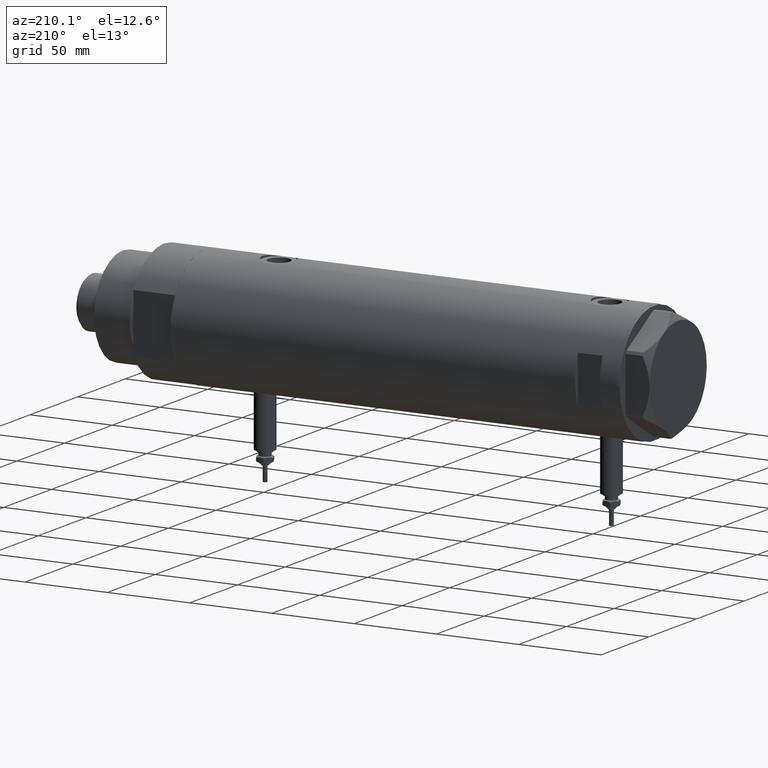
[diagram: clean part render]
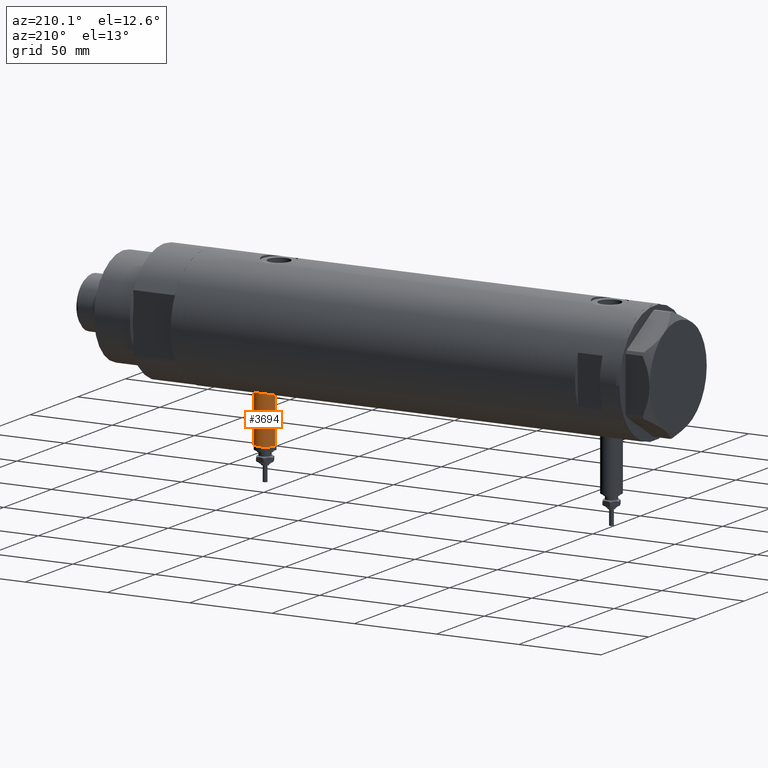
[diagram: same view with one face highlighted and labeled with its STEP entity id]
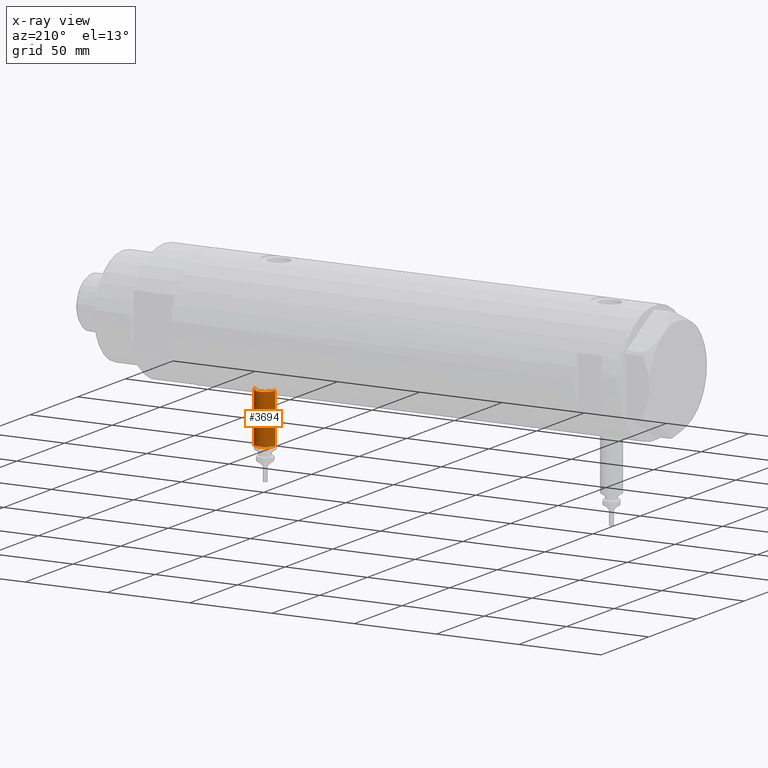
[diagram: x-ray of the same camera — body ghosted, the highlighted face saturated]
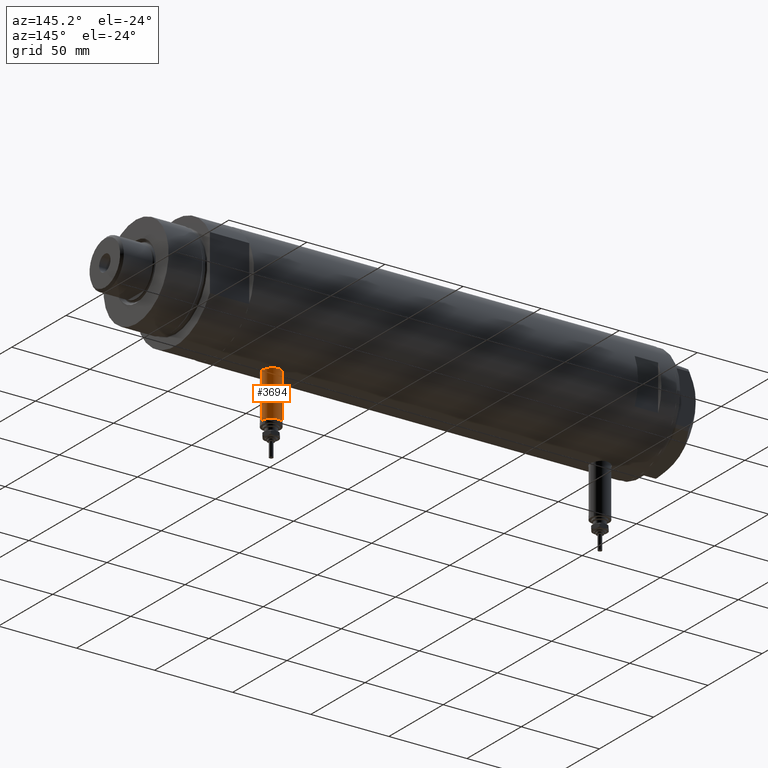
[diagram: same view with one face highlighted and labeled with its STEP entity id]
A machine part, auxiliary view. The second image highlights one B-rep face of the part: STEP entity #3694.
The next image is the same camera in x-ray: the body ghosted, the highlighted face saturated — about 0% of this face is hidden behind the body in this view.
A second angle (auxiliary view) of the same face is appended — the face is thin or edge-on in the first view.
In plain terms, the highlighted cylindrical surface (edge-blend (fillet) strip) has radius 6 mm, axis along (0, 0, 1).
Its self-contained STEP definition (entity closure, byte-faithful):
#18 = VERTEX_POINT ( 'NONE', #5390 ) ;
#286 = DIRECTION ( 'NONE',  ( 1.000000000000000000, -0.000000000000000000, -0.000000000000000000 ) ) ;
#517 = EDGE_CURVE ( 'NONE', #2931, #3825, #3720, .T. ) ;
#614 = CARTESIAN_POINT ( 'NONE',  ( -65.00000000000000000, 7.347880794884122694E-16, -93.09999999999999432 ) ) ;
#630 = FACE_OUTER_BOUND ( 'NONE', #3971, .T. ) ;
#828 = CARTESIAN_POINT ( 'NONE',  ( -65.00000000000000000, 7.347880794884119736E-16, -93.09999999999999432 ) ) ;
#874 = VECTOR ( 'NONE', #286, 1000.000000000000000 ) ;
#921 = DIRECTION ( 'NONE',  ( 0.000000000000000000, 0.000000000000000000, 1.000000000000000000 ) ) ;
#1072 = DIRECTION ( 'NONE',  ( 0.000000000000000000, 0.000000000000000000, 1.000000000000000000 ) ) ;
#1092 = ORIENTED_EDGE ( 'NONE', *, *, #5376, .F. ) ;
#1311 = ORIENTED_EDGE ( 'NONE', *, *, #517, .T. ) ;
#1457 = DIRECTION ( 'NONE',  ( 1.000000000000000000, -0.000000000000000000, -0.000000000000000000 ) ) ;
#1458 = CIRCLE ( 'NONE', #2987, 6.000000000000005329 ) ;
#1507 = ORIENTED_EDGE ( 'NONE', *, *, #5246, .T. ) ;
#1510 = CYLINDRICAL_SURFACE ( 'NONE', #4038, 6.000000000000005329 ) ;
#1646 = VECTOR ( 'NONE', #4649, 1000.000000000000000 ) ;
#1950 = LINE ( 'NONE', #614, #1646 ) ;
#1988 = AXIS2_PLACEMENT_3D ( 'NONE', #5470, #4147, #921 ) ;
#2125 = CARTESIAN_POINT ( 'NONE',  ( -35.29999999999999716, 7.347880794884119736E-16, -93.09999999999999432 ) ) ;
#2931 = VERTEX_POINT ( 'NONE', #2125 ) ;
#2959 = LINE ( 'NONE', #4791, #874 ) ;
#2987 = AXIS2_PLACEMENT_3D ( 'NONE', #3835, #5662, #1072 ) ;
#3694 = ADVANCED_FACE ( 'NONE', ( #630 ), #1510, .T. ) ;
#3720 = CIRCLE ( 'NONE', #1988, 6.000000000000005329 ) ;
#3825 = VERTEX_POINT ( 'NONE', #5705 ) ;
#3835 = CARTESIAN_POINT ( 'NONE',  ( -65.00000000000000000, 0.000000000000000000, -99.09999999999999432 ) ) ;
#3971 = EDGE_LOOP ( 'NONE', ( #5543, #1507, #1311, #1092 ) ) ;
#4038 = AXIS2_PLACEMENT_3D ( 'NONE', #4725, #1457, #5171 ) ;
#4147 = DIRECTION ( 'NONE',  ( -1.000000000000000000, 0.000000000000000000, 0.000000000000000000 ) ) ;
#4649 = DIRECTION ( 'NONE',  ( 1.000000000000000000, -0.000000000000000000, -0.000000000000000000 ) ) ;
#4725 = CARTESIAN_POINT ( 'NONE',  ( -65.00000000000000000, 0.000000000000000000, -99.09999999999999432 ) ) ;
#4791 = CARTESIAN_POINT ( 'NONE',  ( -65.00000000000000000, 0.000000000000000000, -105.0999999999999943 ) ) ;
#5033 = VERTEX_POINT ( 'NONE', #828 ) ;
#5171 = DIRECTION ( 'NONE',  ( 0.000000000000000000, 0.000000000000000000, -1.000000000000000000 ) ) ;
#5246 = EDGE_CURVE ( 'NONE', #5033, #2931, #1950, .T. ) ;
#5286 = EDGE_CURVE ( 'NONE', #5033, #18, #1458, .T. ) ;
#5376 = EDGE_CURVE ( 'NONE', #18, #3825, #2959, .T. ) ;
#5390 = CARTESIAN_POINT ( 'NONE',  ( -65.00000000000000000, 0.000000000000000000, -105.0999999999999943 ) ) ;
#5470 = CARTESIAN_POINT ( 'NONE',  ( -35.29999999999999716, 0.000000000000000000, -99.09999999999999432 ) ) ;
#5543 = ORIENTED_EDGE ( 'NONE', *, *, #5286, .F. ) ;
#5662 = DIRECTION ( 'NONE',  ( -1.000000000000000000, 0.000000000000000000, 0.000000000000000000 ) ) ;
#5705 = CARTESIAN_POINT ( 'NONE',  ( -35.29999999999999716, 0.000000000000000000, -105.0999999999999943 ) ) ;